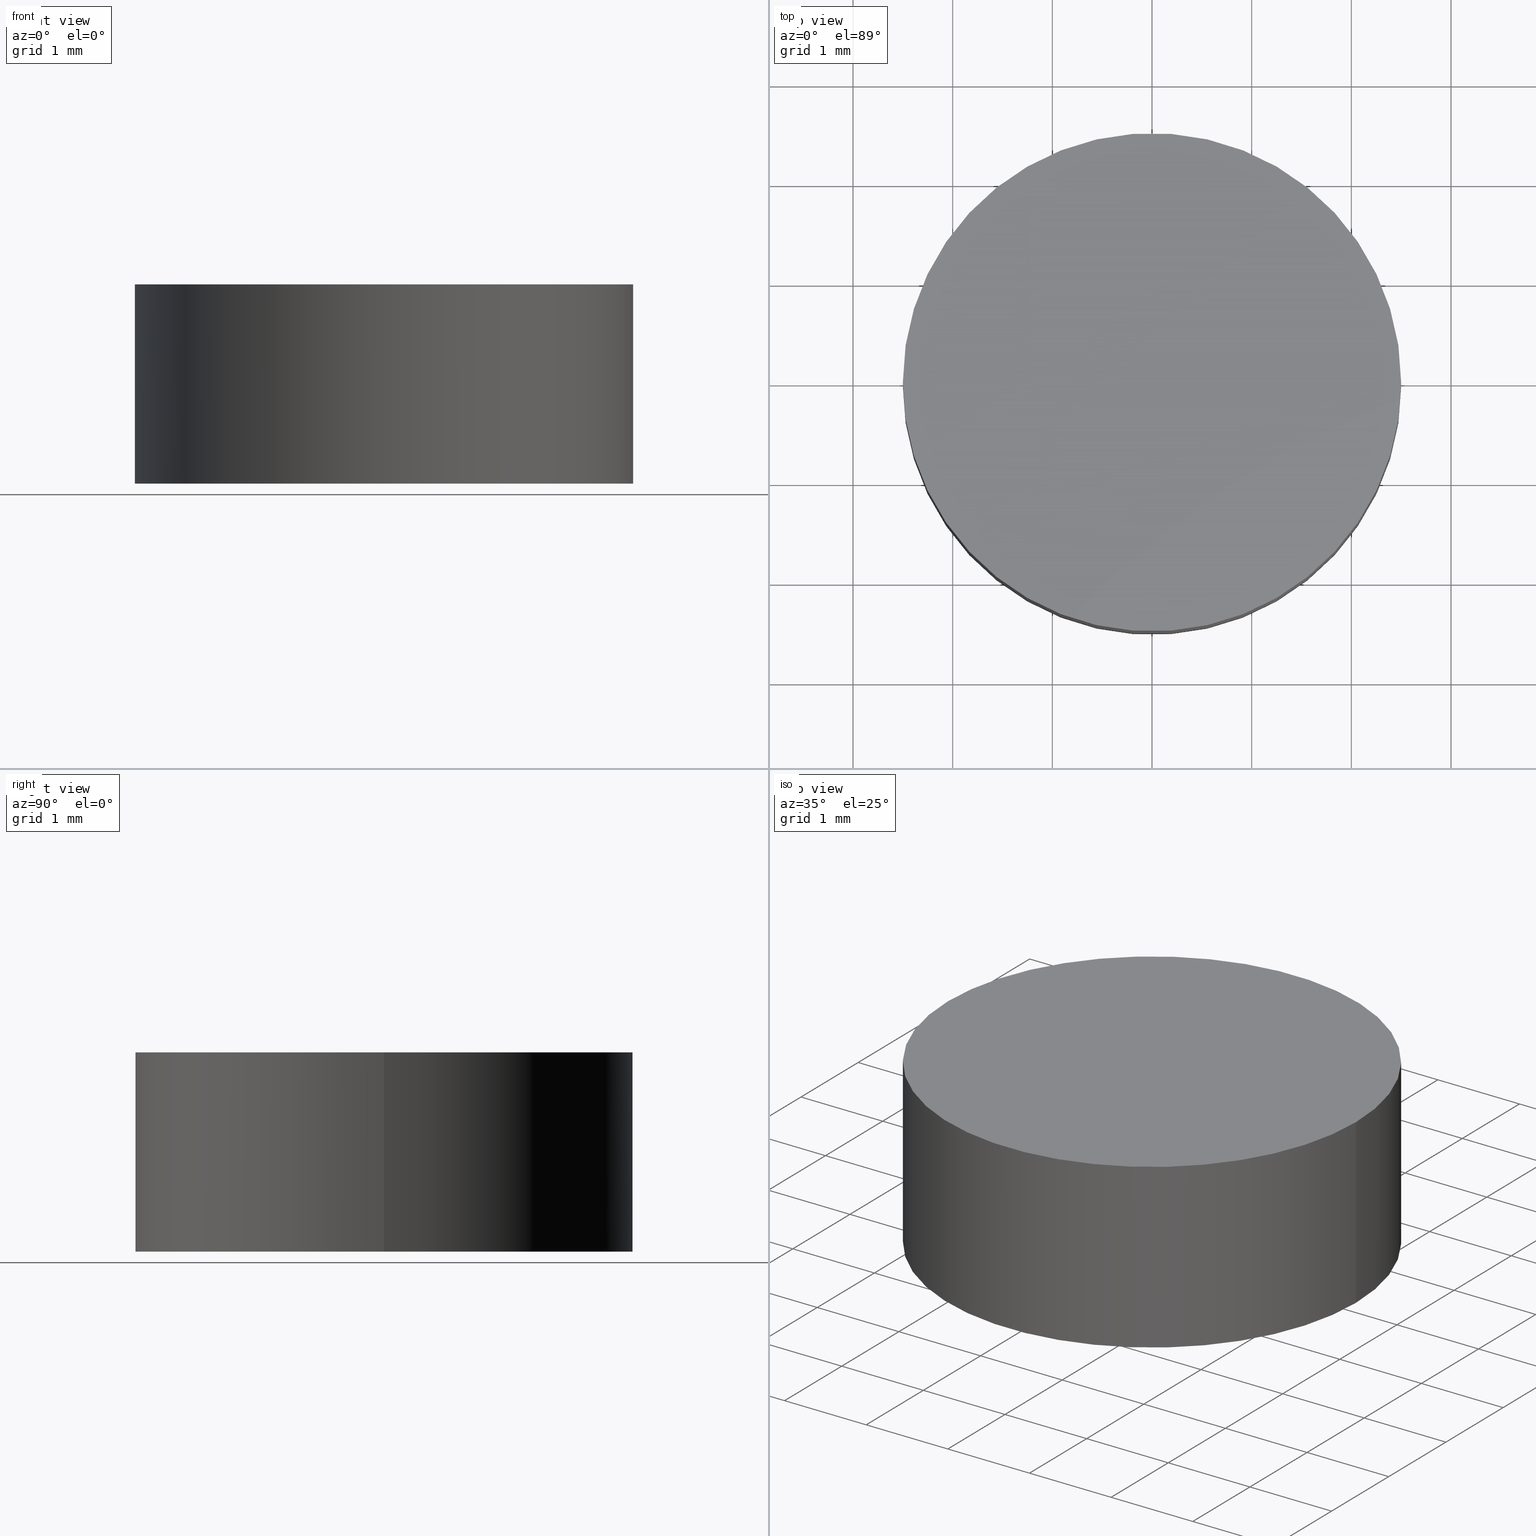
[diagram: canonical four-view strip — front | top / right | iso, engineering-drawing reading convention]
A machine part, canonical four-view strip (front | top / right | iso — engineering-drawing reading convention). The complete STEP part file that produces these views, byte-faithful:
ISO-10303-21;
HEADER;
FILE_DESCRIPTION (( 'STEP AP203' ),
    '1' );
FILE_NAME ('416000.STEP',
    '2019-08-21T02:57:33',
    ( '' ),
    ( '' ),
    'SwSTEP 2.0',
    'SolidWorks 2016',
    '' );
FILE_SCHEMA (( 'CONFIG_CONTROL_DESIGN' ));
ENDSEC;

DATA;
#1 = CALENDAR_DATE ( 2019, 21, 8 ) ;
#2 = CALENDAR_DATE ( 2019, 21, 8 ) ;
#3 = CARTESIAN_POINT ( 'NONE',  ( 2.500000000000002200, 3.061616997868386100E-016, 2.000000000000000000 ) ) ;
#4 = DATE_AND_TIME ( #219, #118 ) ;
#5 = PLANE ( 'NONE',  #248 ) ;
#6 = PERSON_AND_ORGANIZATION ( #252, #23 ) ;
#7 = LOCAL_TIME ( 10, 57, 33.00000000000000000, #154 ) ;
#8 = CC_DESIGN_APPROVAL ( #87, ( #89 ) ) ;
#9 = APPROVAL_STATUS ( 'not_yet_approved' ) ;
#10 = COORDINATED_UNIVERSAL_TIME_OFFSET ( 8, 0, .AHEAD. ) ;
#11 = COORDINATED_UNIVERSAL_TIME_OFFSET ( 8, 0, .AHEAD. ) ;
#12 = FACE_OUTER_BOUND ( 'NONE', #178, .T. ) ;
#13 = ORIENTED_EDGE ( 'NONE', *, *, #108, .F. ) ;
#14 = CC_DESIGN_PERSON_AND_ORGANIZATION_ASSIGNMENT ( #114, #180, ( #89 ) ) ;
#15 = APPLICATION_PROTOCOL_DEFINITION ( 'international standard', 'config_control_design', 1994, #16 ) ;
#16 = APPLICATION_CONTEXT ( 'configuration controlled 3d designs of mechanical parts and assemblies' ) ;
#17 = CLOSED_SHELL ( 'NONE', ( #71, #246, #214, #156 ) ) ;
#18 = PERSON_AND_ORGANIZATION_ROLE ( 'classification_officer' ) ;
#19 =( LENGTH_UNIT ( ) NAMED_UNIT ( * ) SI_UNIT ( .MILLI., .METRE. ) );
#20 = DIRECTION ( 'NONE',  ( -0.0000000000000000000, -0.0000000000000000000, -1.000000000000000000 ) ) ;
#21 = LINE ( 'NONE', #68, #173 ) ;
#22 = APPROVAL ( #9, 'δָ��' ) ;
#23 = ORGANIZATION ( 'δָ��', 'δָ��', '' ) ;
#24 = APPROVAL_PERSON_ORGANIZATION ( #250, #188, #112 ) ;
#25 = MECHANICAL_CONTEXT ( 'NONE', #123, 'mechanical' ) ;
#26 = DIRECTION ( 'NONE',  ( 1.000000000000000000, 0.0000000000000000000, 0.0000000000000000000 ) ) ;
#27 = DIRECTION ( 'NONE',  ( 0.0000000000000000000, 0.0000000000000000000, 1.000000000000000000 ) ) ;
#28 = CARTESIAN_POINT ( 'NONE',  ( 0.0000000000000000000, 0.0000000000000000000, 2.000000000000000000 ) ) ;
#29 = AXIS2_PLACEMENT_3D ( 'NONE', #80, #235, #83 ) ;
#30 = DATE_AND_TIME ( #1, #35 ) ;
#31 = ADVANCED_BREP_SHAPE_REPRESENTATION ( '416000', ( #186, #161 ), #142 ) ;
#32 = CIRCLE ( 'NONE', #29, 2.500000000000002200 ) ;
#33 = CC_DESIGN_PERSON_AND_ORGANIZATION_ASSIGNMENT ( #152, #187, ( #63 ) ) ;
#34 = CALENDAR_DATE ( 2019, 21, 8 ) ;
#35 = LOCAL_TIME ( 10, 57, 33.00000000000000000, #53 ) ;
#36 = VERTEX_POINT ( 'NONE', #116 ) ;
#37 = APPROVAL_STATUS ( 'not_yet_approved' ) ;
#38 = CARTESIAN_POINT ( 'NONE',  ( 0.0000000000000000000, 0.0000000000000000000, 0.0000000000000000000 ) ) ;
#39 = AXIS2_PLACEMENT_3D ( 'NONE', #124, #225, #103 ) ;
#40 = CARTESIAN_POINT ( 'NONE',  ( -2.500000000000002200, 0.0000000000000000000, 0.0000000000000000000 ) ) ;
#41 = CALENDAR_DATE ( 2019, 21, 8 ) ;
#42 = CALENDAR_DATE ( 2019, 21, 8 ) ;
#43 = AXIS2_PLACEMENT_3D ( 'NONE', #38, #207, #143 ) ;
#44 = DATE_AND_TIME ( #2, #159 ) ;
#45 = EDGE_CURVE ( 'NONE', #228, #74, #249, .T. ) ;
#46 = DATE_TIME_ROLE ( 'classification_date' ) ;
#47 = APPLICATION_CONTEXT ( 'configuration controlled 3d designs of mechanical parts and assemblies' ) ;
#48 = PRODUCT_DEFINITION_SHAPE ( 'NONE', 'NONE',  #76 ) ;
#49 = DIRECTION ( 'NONE',  ( 1.000000000000000000, 0.0000000000000000000, 0.0000000000000000000 ) ) ;
#50 = CARTESIAN_POINT ( 'NONE',  ( 0.0000000000000000000, 0.0000000000000000000, 2.000000000000000000 ) ) ;
#51 = CC_DESIGN_DATE_AND_TIME_ASSIGNMENT ( #245, #168, ( #106 ) ) ;
#52 = CC_DESIGN_DATE_AND_TIME_ASSIGNMENT ( #139, #46, ( #110 ) ) ;
#53 = COORDINATED_UNIVERSAL_TIME_OFFSET ( 8, 0, .AHEAD. ) ;
#54 = PERSON_AND_ORGANIZATION ( #252, #23 ) ;
#55 = COORDINATED_UNIVERSAL_TIME_OFFSET ( 8, 0, .AHEAD. ) ;
#56 = DATE_TIME_ROLE ( 'creation_date' ) ;
#57 = EDGE_CURVE ( 'NONE', #36, #215, #137, .T. ) ;
#58 = CARTESIAN_POINT ( 'NONE',  ( -2.500000000000002200, 0.0000000000000000000, 2.000000000000000000 ) ) ;
#59 = APPROVAL_DATE_TIME ( #4, #87 ) ;
#60 = PERSON_AND_ORGANIZATION_ROLE ( 'design_supplier' ) ;
#61 = APPLICATION_PROTOCOL_DEFINITION ( 'international standard', 'config_control_design', 1994, #123 ) ;
#62 = CC_DESIGN_SECURITY_CLASSIFICATION ( #106, ( #197 ) ) ;
#63 = PRODUCT_DEFINITION_FORMATION_WITH_SPECIFIED_SOURCE ( '�κ�', '', #117, .NOT_KNOWN. ) ;
#64 = APPLICATION_PROTOCOL_DEFINITION ( 'international standard', 'config_control_design', 1994, #47 ) ;
#65 = APPROVAL_STATUS ( 'not_yet_approved' ) ;
#66 = CIRCLE ( 'NONE', #39, 2.500000000000002200 ) ;
#67 = AXIS2_PLACEMENT_3D ( 'NONE', #50, #69, #113 ) ;
#68 = CARTESIAN_POINT ( 'NONE',  ( -2.500000000000002200, 0.0000000000000000000, 2.000000000000000000 ) ) ;
#69 = DIRECTION ( 'NONE',  ( -0.0000000000000000000, -0.0000000000000000000, -1.000000000000000000 ) ) ;
#70 = CYLINDRICAL_SURFACE ( 'NONE', #72, 2.500000000000002200 ) ;
#71 = ADVANCED_FACE ( 'NONE', ( #119 ), #223, .T. ) ;
#72 = AXIS2_PLACEMENT_3D ( 'NONE', #204, #79, #205 ) ;
#73 = PRODUCT ( '416000', '416000', '', ( #140 ) ) ;
#74 = VERTEX_POINT ( 'NONE', #230 ) ;
#75 = ORIENTED_EDGE ( 'NONE', *, *, #57, .F. ) ;
#76 = PRODUCT_DEFINITION ( 'δ֪', '', #63, #95 ) ;
#77 = EDGE_CURVE ( 'NONE', #215, #228, #21, .T. ) ;
#78 = CC_DESIGN_PERSON_AND_ORGANIZATION_ASSIGNMENT ( #54, #148, ( #76 ) ) ;
#79 = DIRECTION ( 'NONE',  ( -0.0000000000000000000, -0.0000000000000000000, -1.000000000000000000 ) ) ;
#80 = CARTESIAN_POINT ( 'NONE',  ( 0.0000000000000000000, 0.0000000000000000000, 2.000000000000000000 ) ) ;
#81 = APPROVAL_PERSON_ORGANIZATION ( #136, #22, #240 ) ;
#82 = APPLICATION_CONTEXT ( 'configuration controlled 3d designs of mechanical parts and assemblies' ) ;
#83 = DIRECTION ( 'NONE',  ( 1.000000000000000000, 0.0000000000000000000, 0.0000000000000000000 ) ) ;
#84 = VECTOR ( 'NONE', #20, 1000.000000000000000 ) ;
#85 = APPROVAL_DATE_TIME ( #241, #175 ) ;
#86 = CALENDAR_DATE ( 2019, 21, 8 ) ;
#87 = APPROVAL ( #37, 'δָ��' ) ;
#88 = DIRECTION ( 'NONE',  ( -0.0000000000000000000, -0.0000000000000000000, -1.000000000000000000 ) ) ;
#89 = PRODUCT_DEFINITION ( 'δ֪', '', #197, #177 ) ;
#90 = DATE_AND_TIME ( #149, #169 ) ;
#91 = EDGE_CURVE ( 'NONE', #36, #74, #174, .T. ) ;
#92 = CC_DESIGN_DATE_AND_TIME_ASSIGNMENT ( #94, #131, ( #76 ) ) ;
#93 = PERSON_AND_ORGANIZATION ( #252, #23 ) ;
#94 = DATE_AND_TIME ( #251, #100 ) ;
#95 = DESIGN_CONTEXT ( 'detailed design', #47, 'design' ) ;
#96 = COORDINATED_UNIVERSAL_TIME_OFFSET ( 8, 0, .AHEAD. ) ;
#97 = LOCAL_TIME ( 10, 57, 33.00000000000000000, #157 ) ;
#98 = ORIENTED_EDGE ( 'NONE', *, *, #108, .T. ) ;
#99 = DIRECTION ( 'NONE',  ( 0.0000000000000000000, 0.0000000000000000000, 1.000000000000000000 ) ) ;
#100 = LOCAL_TIME ( 10, 57, 33.00000000000000000, #212 ) ;
#101 = CC_DESIGN_PERSON_AND_ORGANIZATION_ASSIGNMENT ( #155, #18, ( #106 ) ) ;
#102 = CARTESIAN_POINT ( 'NONE',  ( 0.0000000000000000000, 0.0000000000000000000, 2.000000000000000000 ) ) ;
#103 = DIRECTION ( 'NONE',  ( 1.000000000000000000, 0.0000000000000000000, 0.0000000000000000000 ) ) ;
#104 = SHAPE_DEFINITION_REPRESENTATION ( #48, #31 ) ;
#105 = LOCAL_TIME ( 10, 57, 33.00000000000000000, #198 ) ;
#106 = SECURITY_CLASSIFICATION ( '', '', #144 ) ;
#107 = LOCAL_TIME ( 10, 57, 33.00000000000000000, #195 ) ;
#108 = EDGE_CURVE ( 'NONE', #74, #228, #66, .T. ) ;
#109 = ORIENTED_EDGE ( 'NONE', *, *, #77, .F. ) ;
#110 = SECURITY_CLASSIFICATION ( '', '', #128 ) ;
#111 = CALENDAR_DATE ( 2019, 21, 8 ) ;
#112 = APPROVAL_ROLE ( '' ) ;
#113 = DIRECTION ( 'NONE',  ( -1.000000000000000000, 0.0000000000000000000, 0.0000000000000000000 ) ) ;
#114 = PERSON_AND_ORGANIZATION ( #252, #23 ) ;
#115 = DATE_AND_TIME ( #86, #107 ) ;
#116 = CARTESIAN_POINT ( 'NONE',  ( 2.500000000000002200, 3.061616997868386100E-016, 2.000000000000000000 ) ) ;
#117 = PRODUCT ( '416000', '416000', '', ( #25 ) ) ;
#118 = LOCAL_TIME ( 10, 57, 33.00000000000000000, #55 ) ;
#119 = FACE_OUTER_BOUND ( 'NONE', #211, .T. ) ;
#120 = CC_DESIGN_PERSON_AND_ORGANIZATION_ASSIGNMENT ( #253, #60, ( #197 ) ) ;
#121 = AXIS2_PLACEMENT_3D ( 'NONE', #193, #213, #26 ) ;
#122 = CC_DESIGN_SECURITY_CLASSIFICATION ( #110, ( #63 ) ) ;
#123 = APPLICATION_CONTEXT ( 'configuration controlled 3d designs of mechanical parts and assemblies' ) ;
#124 = CARTESIAN_POINT ( 'NONE',  ( 0.0000000000000000000, 0.0000000000000000000, 0.0000000000000000000 ) ) ;
#125 = ORIENTED_EDGE ( 'NONE', *, *, #91, .F. ) ;
#126 = DIRECTION ( 'NONE',  ( 1.000000000000000000, 0.0000000000000000000, 0.0000000000000000000 ) ) ;
#127 = CARTESIAN_POINT ( 'NONE',  ( 0.0000000000000000000, 0.0000000000000000000, 0.0000000000000000000 ) ) ;
#128 = SECURITY_CLASSIFICATION_LEVEL ( 'unclassified' ) ;
#129 = FACE_OUTER_BOUND ( 'NONE', #158, .T. ) ;
#130 = APPROVAL_STATUS ( 'not_yet_approved' ) ;
#131 = DATE_TIME_ROLE ( 'creation_date' ) ;
#132 = CC_DESIGN_PERSON_AND_ORGANIZATION_ASSIGNMENT ( #194, #236, ( #197 ) ) ;
#133 = ORIENTED_EDGE ( 'NONE', *, *, #45, .T. ) ;
#134 = AXIS2_PLACEMENT_3D ( 'NONE', #28, #27, #49 ) ;
#135 = CC_DESIGN_PERSON_AND_ORGANIZATION_ASSIGNMENT ( #243, #191, ( #110 ) ) ;
#136 = PERSON_AND_ORGANIZATION ( #252, #23 ) ;
#137 = CIRCLE ( 'NONE', #134, 2.500000000000002200 ) ;
#138 = LOCAL_TIME ( 10, 57, 33.00000000000000000, #96 ) ;
#139 = DATE_AND_TIME ( #42, #97 ) ;
#140 = MECHANICAL_CONTEXT ( 'NONE', #82, 'mechanical' ) ;
#141 = ORIENTED_EDGE ( 'NONE', *, *, #176, .F. ) ;
#142 =( GEOMETRIC_REPRESENTATION_CONTEXT ( 3 ) GLOBAL_UNCERTAINTY_ASSIGNED_CONTEXT ( ( #233 ) ) GLOBAL_UNIT_ASSIGNED_CONTEXT ( ( #19, #238, #224 ) ) REPRESENTATION_CONTEXT ( 'NONE', 'WORKASPACE' ) );
#143 = DIRECTION ( 'NONE',  ( 1.000000000000000000, 0.0000000000000000000, -0.0000000000000000000 ) ) ;
#144 = SECURITY_CLASSIFICATION_LEVEL ( 'unclassified' ) ;
#145 = PLANE ( 'NONE',  #43 ) ;
#146 = DIRECTION ( 'NONE',  ( 0.0000000000000000000, 0.0000000000000000000, 1.000000000000000000 ) ) ;
#147 = FACE_OUTER_BOUND ( 'NONE', #192, .T. ) ;
#148 = PERSON_AND_ORGANIZATION_ROLE ( 'creator' ) ;
#149 = CALENDAR_DATE ( 2019, 21, 8 ) ;
#150 = CC_DESIGN_PERSON_AND_ORGANIZATION_ASSIGNMENT ( #179, #222, ( #73 ) ) ;
#151 = CC_DESIGN_APPROVAL ( #190, ( #110 ) ) ;
#152 = PERSON_AND_ORGANIZATION ( #252, #23 ) ;
#153 = APPROVAL_PERSON_ORGANIZATION ( #6, #87, #184 ) ;
#154 = COORDINATED_UNIVERSAL_TIME_OFFSET ( 8, 0, .AHEAD. ) ;
#155 = PERSON_AND_ORGANIZATION ( #252, #23 ) ;
#156 = ADVANCED_FACE ( 'NONE', ( #129 ), #145, .F. ) ;
#157 = COORDINATED_UNIVERSAL_TIME_OFFSET ( 8, 0, .AHEAD. ) ;
#158 = EDGE_LOOP ( 'NONE', ( #231, #13 ) ) ;
#159 = LOCAL_TIME ( 10, 57, 33.00000000000000000, #10 ) ;
#160 = PERSON_AND_ORGANIZATION ( #252, #23 ) ;
#161 = AXIS2_PLACEMENT_3D ( 'NONE', #127, #146, #171 ) ;
#162 = PERSON_AND_ORGANIZATION ( #252, #23 ) ;
#163 = AXIS2_PLACEMENT_3D ( 'NONE', #237, #99, #126 ) ;
#164 = ORIENTED_EDGE ( 'NONE', *, *, #77, .T. ) ;
#165 = PRODUCT_RELATED_PRODUCT_CATEGORY ( 'detail', '', ( #117 ) ) ;
#166 = APPROVAL_PERSON_ORGANIZATION ( #196, #181, #227 ) ;
#167 = APPROVAL_STATUS ( 'not_yet_approved' ) ;
#168 = DATE_TIME_ROLE ( 'classification_date' ) ;
#169 = LOCAL_TIME ( 10, 57, 33.00000000000000000, #11 ) ;
#170 = APPROVAL_DATE_TIME ( #115, #190 ) ;
#171 = DIRECTION ( 'NONE',  ( 1.000000000000000000, 0.0000000000000000000, 0.0000000000000000000 ) ) ;
#172 = CC_DESIGN_PERSON_AND_ORGANIZATION_ASSIGNMENT ( #160, #242, ( #117 ) ) ;
#173 = VECTOR ( 'NONE', #88, 1000.000000000000000 ) ;
#174 = LINE ( 'NONE', #3, #84 ) ;
#175 = APPROVAL ( #167, 'δָ��' ) ;
#176 = EDGE_CURVE ( 'NONE', #215, #36, #32, .T. ) ;
#177 = DESIGN_CONTEXT ( 'detailed design', #16, 'design' ) ;
#178 = EDGE_LOOP ( 'NONE', ( #125, #141, #164, #133 ) ) ;
#179 = PERSON_AND_ORGANIZATION ( #252, #23 ) ;
#180 = PERSON_AND_ORGANIZATION_ROLE ( 'creator' ) ;
#181 = APPROVAL ( #130, 'δָ��' ) ;
#182 = DIRECTION ( 'NONE',  ( 0.0000000000000000000, 0.0000000000000000000, 1.000000000000000000 ) ) ;
#183 = APPLICATION_PROTOCOL_DEFINITION ( 'international standard', 'config_control_design', 1994, #82 ) ;
#184 = APPROVAL_ROLE ( '' ) ;
#185 = DIRECTION ( 'NONE',  ( 1.000000000000000000, 0.0000000000000000000, -0.0000000000000000000 ) ) ;
#186 = MANIFOLD_SOLID_BREP ( '͹̨-����1', #17 ) ;
#187 = PERSON_AND_ORGANIZATION_ROLE ( 'design_supplier' ) ;
#188 = APPROVAL ( #206, 'δָ��' ) ;
#189 = APPROVAL_ROLE ( '' ) ;
#190 = APPROVAL ( #65, 'δָ��' ) ;
#191 = PERSON_AND_ORGANIZATION_ROLE ( 'classification_officer' ) ;
#192 = EDGE_LOOP ( 'NONE', ( #239, #220 ) ) ;
#193 = CARTESIAN_POINT ( 'NONE',  ( 0.0000000000000000000, 0.0000000000000000000, 0.0000000000000000000 ) ) ;
#194 = PERSON_AND_ORGANIZATION ( #252, #23 ) ;
#195 = COORDINATED_UNIVERSAL_TIME_OFFSET ( 8, 0, .AHEAD. ) ;
#196 = PERSON_AND_ORGANIZATION ( #252, #23 ) ;
#197 = PRODUCT_DEFINITION_FORMATION_WITH_SPECIFIED_SOURCE ( '�κ�', '', #73, .NOT_KNOWN. ) ;
#198 = COORDINATED_UNIVERSAL_TIME_OFFSET ( 8, 0, .AHEAD. ) ;
#199 = CC_DESIGN_APPROVAL ( #188, ( #106 ) ) ;
#200 = APPROVAL_DATE_TIME ( #30, #22 ) ;
#201 = CC_DESIGN_APPROVAL ( #181, ( #76 ) ) ;
#202 = CC_DESIGN_PERSON_AND_ORGANIZATION_ASSIGNMENT ( #210, #208, ( #63 ) ) ;
#203 = APPROVAL_DATE_TIME ( #217, #181 ) ;
#204 = CARTESIAN_POINT ( 'NONE',  ( 0.0000000000000000000, 0.0000000000000000000, 2.000000000000000000 ) ) ;
#205 = DIRECTION ( 'NONE',  ( -1.000000000000000000, 0.0000000000000000000, 0.0000000000000000000 ) ) ;
#206 = APPROVAL_STATUS ( 'not_yet_approved' ) ;
#207 = DIRECTION ( 'NONE',  ( 0.0000000000000000000, 0.0000000000000000000, 1.000000000000000000 ) ) ;
#208 = PERSON_AND_ORGANIZATION_ROLE ( 'creator' ) ;
#209 = APPROVAL_PERSON_ORGANIZATION ( #162, #175, #221 ) ;
#210 = PERSON_AND_ORGANIZATION ( #252, #23 ) ;
#211 = EDGE_LOOP ( 'NONE', ( #75, #232, #98, #109 ) ) ;
#212 = COORDINATED_UNIVERSAL_TIME_OFFSET ( 8, 0, .AHEAD. ) ;
#213 = DIRECTION ( 'NONE',  ( 0.0000000000000000000, 0.0000000000000000000, 1.000000000000000000 ) ) ;
#214 = ADVANCED_FACE ( 'NONE', ( #147 ), #5, .T. ) ;
#215 = VERTEX_POINT ( 'NONE', #58 ) ;
#216 = PRODUCT_RELATED_PRODUCT_CATEGORY ( 'detail', '', ( #73 ) ) ;
#217 = DATE_AND_TIME ( #111, #7 ) ;
#218 = CC_DESIGN_APPROVAL ( #22, ( #63 ) ) ;
#219 = CALENDAR_DATE ( 2019, 21, 8 ) ;
#220 = ORIENTED_EDGE ( 'NONE', *, *, #57, .T. ) ;
#221 = APPROVAL_ROLE ( '' ) ;
#222 = PERSON_AND_ORGANIZATION_ROLE ( 'design_owner' ) ;
#223 = CYLINDRICAL_SURFACE ( 'NONE', #67, 2.500000000000002200 ) ;
#224 =( NAMED_UNIT ( * ) SI_UNIT ( $, .STERADIAN. ) SOLID_ANGLE_UNIT ( ) );
#225 = DIRECTION ( 'NONE',  ( 0.0000000000000000000, 0.0000000000000000000, 1.000000000000000000 ) ) ;
#226 = CC_DESIGN_DATE_AND_TIME_ASSIGNMENT ( #90, #56, ( #89 ) ) ;
#227 = APPROVAL_ROLE ( '' ) ;
#228 = VERTEX_POINT ( 'NONE', #40 ) ;
#229 = PRODUCT_DEFINITION_SHAPE ( 'NONE', 'NONE',  #89 ) ;
#230 = CARTESIAN_POINT ( 'NONE',  ( 2.500000000000002200, 3.061616997868386100E-016, 0.0000000000000000000 ) ) ;
#231 = ORIENTED_EDGE ( 'NONE', *, *, #45, .F. ) ;
#232 = ORIENTED_EDGE ( 'NONE', *, *, #91, .T. ) ;
#233 = UNCERTAINTY_MEASURE_WITH_UNIT (LENGTH_MEASURE( 1.000000000000000100E-005 ), #19, 'distance_accuracy_value', 'NONE');
#234 = CC_DESIGN_APPROVAL ( #175, ( #197 ) ) ;
#235 = DIRECTION ( 'NONE',  ( 0.0000000000000000000, 0.0000000000000000000, 1.000000000000000000 ) ) ;
#236 = PERSON_AND_ORGANIZATION_ROLE ( 'creator' ) ;
#237 = CARTESIAN_POINT ( 'NONE',  ( 0.0000000000000000000, 0.0000000000000000000, 0.0000000000000000000 ) ) ;
#238 =( NAMED_UNIT ( * ) PLANE_ANGLE_UNIT ( ) SI_UNIT ( $, .RADIAN. ) );
#239 = ORIENTED_EDGE ( 'NONE', *, *, #176, .T. ) ;
#240 = APPROVAL_ROLE ( '' ) ;
#241 = DATE_AND_TIME ( #34, #105 ) ;
#242 = PERSON_AND_ORGANIZATION_ROLE ( 'design_owner' ) ;
#243 = PERSON_AND_ORGANIZATION ( #252, #23 ) ;
#244 = APPROVAL_DATE_TIME ( #44, #188 ) ;
#245 = DATE_AND_TIME ( #41, #138 ) ;
#246 = ADVANCED_FACE ( 'NONE', ( #12 ), #70, .T. ) ;
#247 = APPROVAL_PERSON_ORGANIZATION ( #93, #190, #189 ) ;
#248 = AXIS2_PLACEMENT_3D ( 'NONE', #102, #182, #185 ) ;
#249 = CIRCLE ( 'NONE', #121, 2.500000000000002200 ) ;
#250 = PERSON_AND_ORGANIZATION ( #252, #23 ) ;
#251 = CALENDAR_DATE ( 2019, 21, 8 ) ;
#252 = PERSON ( 'δָ��', 'δָ��', 'δָ��', ('δָ��'), ('δָ��'), ('δָ��') ) ;
#253 = PERSON_AND_ORGANIZATION ( #252, #23 ) ;
ENDSEC;
END-ISO-10303-21;
